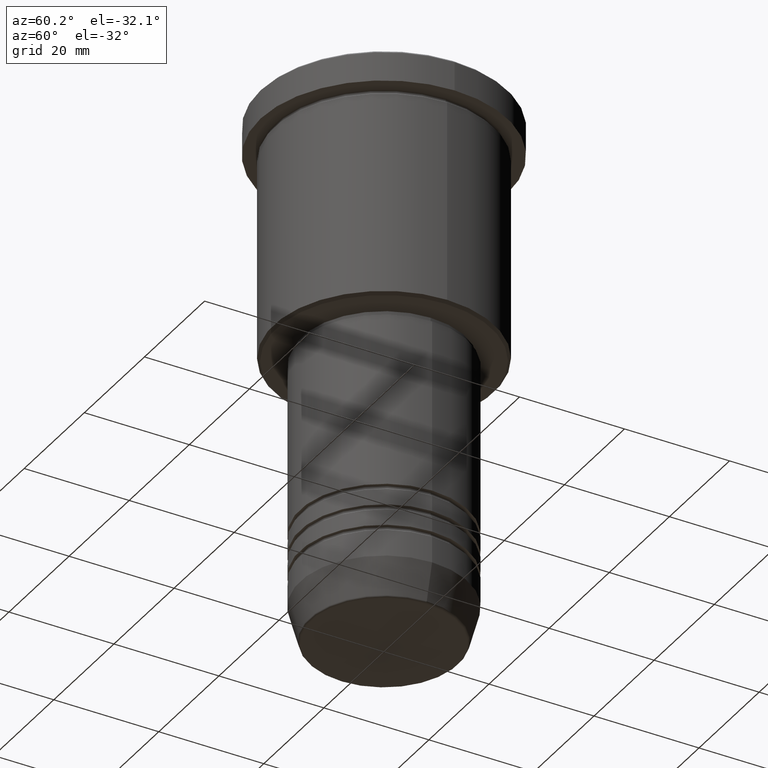
[diagram: clean part render]
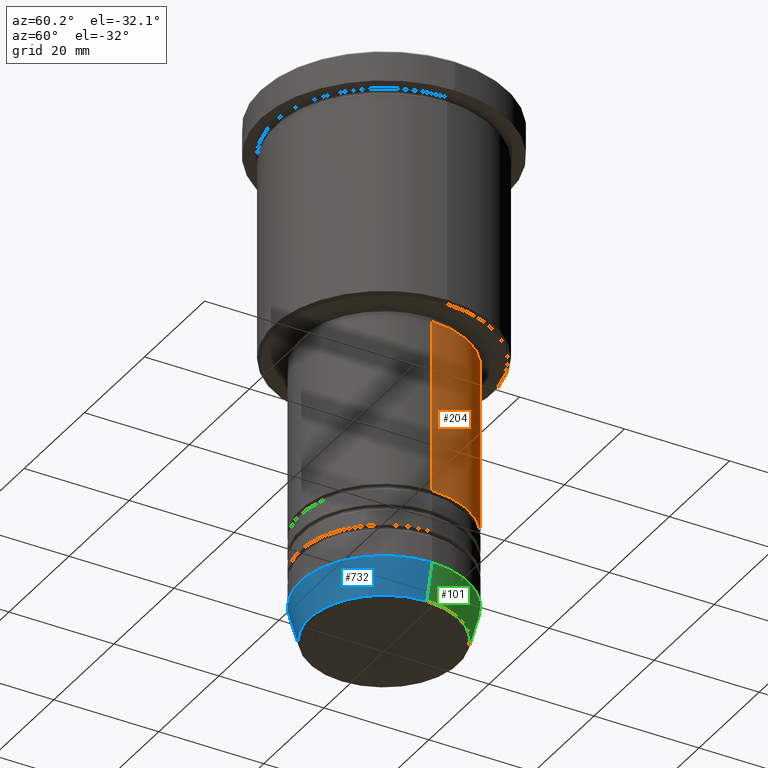
[diagram: same view with three faces highlighted in distinct colors, each labeled with its STEP entity id]
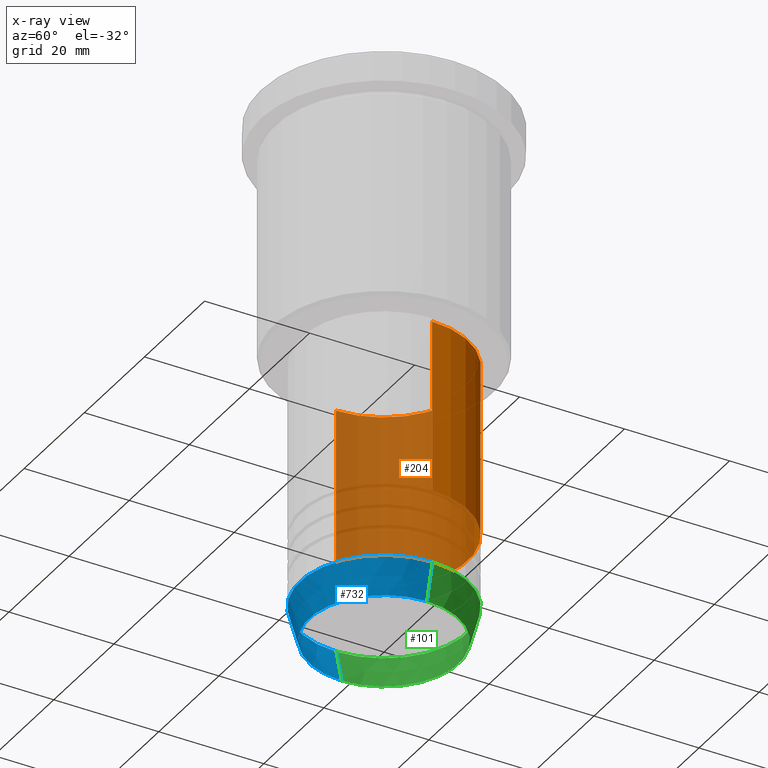
[diagram: x-ray of the same camera — body ghosted, the three highlighted faces saturated]
A machine part, auxiliary view with three faces highlighted in distinct colors.
The next image is the same camera in x-ray (body ghosted, the three faces saturated) — at least one of them is partly hidden behind the body in this view.
Their STEP definitions:

[orange] entity #204 — the highlighted cylindrical surface (partial cylindrical patch) has radius 16 mm, axis along (-0, -0, 1).
#4 = ORIENTED_EDGE ( 'NONE', *, *, #891, .T. ) ;
#31 = VERTEX_POINT ( 'NONE', #487 ) ;
#77 = DIRECTION ( 'NONE',  ( -0.000000000000000000, -0.000000000000000000, 1.000000000000000000 ) ) ;
#131 = LINE ( 'NONE', #497, #1125 ) ;
#204 = ADVANCED_FACE ( 'NONE', ( #440 ), #340, .T. ) ;
#213 = VERTEX_POINT ( 'NONE', #254 ) ;
#254 = CARTESIAN_POINT ( 'NONE',  ( 16.00000000000000355, 0.000000000000000000, -46.99999999999997868 ) ) ;
#294 = VERTEX_POINT ( 'NONE', #831 ) ;
#340 = CYLINDRICAL_SURFACE ( 'NONE', #917, 16.00000000000000000 ) ;
#341 = DIRECTION ( 'NONE',  ( 1.000000000000000000, 0.000000000000000000, 0.000000000000000000 ) ) ;
#404 = ORIENTED_EDGE ( 'NONE', *, *, #876, .T. ) ;
#415 = CIRCLE ( 'NONE', #1082, 16.00000000000000355 ) ;
#440 = FACE_OUTER_BOUND ( 'NONE', #505, .T. ) ;
#450 = DIRECTION ( 'NONE',  ( -0.000000000000000000, -0.000000000000000000, 1.000000000000000000 ) ) ;
#471 = ORIENTED_EDGE ( 'NONE', *, *, #1163, .F. ) ;
#487 = CARTESIAN_POINT ( 'NONE',  ( -16.00000000000000355, 1.959434878635765526E-15, -46.99999999999997868 ) ) ;
#497 = CARTESIAN_POINT ( 'NONE',  ( 16.00000000000000000, 0.000000000000000000, 0.000000000000000000 ) ) ;
#505 = EDGE_LOOP ( 'NONE', ( #4, #404, #982, #471 ) ) ;
#527 = CARTESIAN_POINT ( 'NONE',  ( 0.000000000000000000, 0.000000000000000000, -46.99999999999997868 ) ) ;
#538 = CARTESIAN_POINT ( 'NONE',  ( 16.00000000000000000, 0.000000000000000000, -79.99999999999988631 ) ) ;
#602 = DIRECTION ( 'NONE',  ( -0.000000000000000000, -0.000000000000000000, 1.000000000000000000 ) ) ;
#627 = DIRECTION ( 'NONE',  ( 1.000000000000000000, 0.000000000000000000, 0.000000000000000000 ) ) ;
#641 = DIRECTION ( 'NONE',  ( -0.000000000000000000, -0.000000000000000000, 1.000000000000000000 ) ) ;
#802 = CARTESIAN_POINT ( 'NONE',  ( 0.000000000000000000, 0.000000000000000000, -79.99999999999988631 ) ) ;
#831 = CARTESIAN_POINT ( 'NONE',  ( -16.00000000000000000, 1.959434878635765131E-15, -79.99999999999988631 ) ) ;
#867 = AXIS2_PLACEMENT_3D ( 'NONE', #802, #878, #341 ) ;
#876 = EDGE_CURVE ( 'NONE', #294, #31, #1158, .T. ) ;
#878 = DIRECTION ( 'NONE',  ( -0.000000000000000000, -0.000000000000000000, 1.000000000000000000 ) ) ;
#884 = EDGE_CURVE ( 'NONE', #213, #31, #415, .T. ) ;
#891 = EDGE_CURVE ( 'NONE', #930, #294, #1004, .T. ) ;
#917 = AXIS2_PLACEMENT_3D ( 'NONE', #1079, #602, #998 ) ;
#926 = VECTOR ( 'NONE', #77, 1000.000000000000000 ) ;
#930 = VERTEX_POINT ( 'NONE', #538 ) ;
#982 = ORIENTED_EDGE ( 'NONE', *, *, #884, .F. ) ;
#998 = DIRECTION ( 'NONE',  ( 1.000000000000000000, 0.000000000000000000, 0.000000000000000000 ) ) ;
#999 = CARTESIAN_POINT ( 'NONE',  ( -16.00000000000000000, 1.959434878635765131E-15, 0.000000000000000000 ) ) ;
#1004 = CIRCLE ( 'NONE', #867, 16.00000000000000000 ) ;
#1079 = CARTESIAN_POINT ( 'NONE',  ( 0.000000000000000000, 0.000000000000000000, 0.000000000000000000 ) ) ;
#1082 = AXIS2_PLACEMENT_3D ( 'NONE', #527, #641, #627 ) ;
#1125 = VECTOR ( 'NONE', #450, 1000.000000000000000 ) ;
#1158 = LINE ( 'NONE', #999, #926 ) ;
#1163 = EDGE_CURVE ( 'NONE', #930, #213, #131, .T. ) ;

[blue] entity #732 — the highlighted conical surface has half-angle 15 deg.
#23 = DIRECTION ( 'NONE',  ( 1.000000000000000000, 0.000000000000000000, 0.000000000000000000 ) ) ;
#57 = DIRECTION ( 'NONE',  ( 1.000000000000000000, 0.000000000000000000, 0.000000000000000000 ) ) ;
#139 = AXIS2_PLACEMENT_3D ( 'NONE', #1166, #170, #57 ) ;
#140 = ORIENTED_EDGE ( 'NONE', *, *, #235, .T. ) ;
#168 = VERTEX_POINT ( 'NONE', #697 ) ;
#170 = DIRECTION ( 'NONE',  ( -0.000000000000000000, -0.000000000000000000, 1.000000000000000000 ) ) ;
#173 = AXIS2_PLACEMENT_3D ( 'NONE', #748, #739, #23 ) ;
#190 = DIRECTION ( 'NONE',  ( 1.000000000000000000, 0.000000000000000000, 0.000000000000000000 ) ) ;
#198 = CONICAL_SURFACE ( 'NONE', #173, 16.00000000000000000, 0.2617993877991500740 ) ;
#227 = CIRCLE ( 'NONE', #139, 16.00000000000000000 ) ;
#234 = CARTESIAN_POINT ( 'NONE',  ( -16.00000000000000000, 1.959434878635765131E-15, -94.00000000000000000 ) ) ;
#235 = EDGE_CURVE ( 'NONE', #803, #613, #543, .T. ) ;
#242 = CARTESIAN_POINT ( 'NONE',  ( 14.22365507213718949, 0.000000000000000000, -100.6294095225512706 ) ) ;
#390 = EDGE_LOOP ( 'NONE', ( #539, #1035, #140, #589 ) ) ;
#432 = LINE ( 'NONE', #234, #545 ) ;
#454 = CARTESIAN_POINT ( 'NONE',  ( 0.000000000000000000, 0.000000000000000000, -100.6294095225512706 ) ) ;
#492 = VERTEX_POINT ( 'NONE', #852 ) ;
#506 = CIRCLE ( 'NONE', #927, 14.22365507213718949 ) ;
#518 = DIRECTION ( 'NONE',  ( -0.2588190451025213501, 3.169619151431772337E-17, 0.9659258262890680902 ) ) ;
#539 = ORIENTED_EDGE ( 'NONE', *, *, #954, .F. ) ;
#543 = LINE ( 'NONE', #890, #873 ) ;
#545 = VECTOR ( 'NONE', #518, 1000.000000000000000 ) ;
#589 = ORIENTED_EDGE ( 'NONE', *, *, #595, .F. ) ;
#595 = EDGE_CURVE ( 'NONE', #168, #613, #227, .T. ) ;
#613 = VERTEX_POINT ( 'NONE', #1172 ) ;
#644 = FACE_OUTER_BOUND ( 'NONE', #390, .T. ) ;
#697 = CARTESIAN_POINT ( 'NONE',  ( -16.00000000000000000, 1.959434878635765131E-15, -94.00000000000000000 ) ) ;
#732 = ADVANCED_FACE ( 'NONE', ( #644 ), #198, .T. ) ;
#739 = DIRECTION ( 'NONE',  ( -0.000000000000000000, -0.000000000000000000, 1.000000000000000000 ) ) ;
#748 = CARTESIAN_POINT ( 'NONE',  ( 0.000000000000000000, 0.000000000000000000, -94.00000000000000000 ) ) ;
#781 = DIRECTION ( 'NONE',  ( 0.2588190451025213501, 0.000000000000000000, 0.9659258262890680902 ) ) ;
#803 = VERTEX_POINT ( 'NONE', #242 ) ;
#818 = DIRECTION ( 'NONE',  ( -0.000000000000000000, -0.000000000000000000, 1.000000000000000000 ) ) ;
#852 = CARTESIAN_POINT ( 'NONE',  ( -14.22365507213718949, 1.850665122131323337E-15, -100.6294095225512706 ) ) ;
#873 = VECTOR ( 'NONE', #781, 1000.000000000000000 ) ;
#890 = CARTESIAN_POINT ( 'NONE',  ( 16.00000000000000000, 0.000000000000000000, -94.00000000000000000 ) ) ;
#927 = AXIS2_PLACEMENT_3D ( 'NONE', #454, #818, #190 ) ;
#954 = EDGE_CURVE ( 'NONE', #492, #168, #432, .T. ) ;
#1035 = ORIENTED_EDGE ( 'NONE', *, *, #1136, .T. ) ;
#1136 = EDGE_CURVE ( 'NONE', #492, #803, #506, .T. ) ;
#1166 = CARTESIAN_POINT ( 'NONE',  ( 0.000000000000000000, 0.000000000000000000, -94.00000000000000000 ) ) ;
#1172 = CARTESIAN_POINT ( 'NONE',  ( 16.00000000000000000, 0.000000000000000000, -94.00000000000000000 ) ) ;

[green] entity #101 — the highlighted conical surface has half-angle 15 deg.
#26 = CARTESIAN_POINT ( 'NONE',  ( 0.000000000000000000, 0.000000000000000000, -94.00000000000000000 ) ) ;
#32 = AXIS2_PLACEMENT_3D ( 'NONE', #93, #931, #754 ) ;
#93 = CARTESIAN_POINT ( 'NONE',  ( 0.000000000000000000, 0.000000000000000000, -94.00000000000000000 ) ) ;
#101 = ADVANCED_FACE ( 'NONE', ( #841 ), #371, .T. ) ;
#168 = VERTEX_POINT ( 'NONE', #697 ) ;
#199 = ORIENTED_EDGE ( 'NONE', *, *, #591, .T. ) ;
#234 = CARTESIAN_POINT ( 'NONE',  ( -16.00000000000000000, 1.959434878635765131E-15, -94.00000000000000000 ) ) ;
#235 = EDGE_CURVE ( 'NONE', #803, #613, #543, .T. ) ;
#242 = CARTESIAN_POINT ( 'NONE',  ( 14.22365507213718949, 0.000000000000000000, -100.6294095225512706 ) ) ;
#291 = DIRECTION ( 'NONE',  ( -0.000000000000000000, -0.000000000000000000, 1.000000000000000000 ) ) ;
#304 = AXIS2_PLACEMENT_3D ( 'NONE', #26, #291, #639 ) ;
#371 = CONICAL_SURFACE ( 'NONE', #304, 16.00000000000000000, 0.2617993877991500740 ) ;
#399 = ORIENTED_EDGE ( 'NONE', *, *, #954, .T. ) ;
#432 = LINE ( 'NONE', #234, #545 ) ;
#492 = VERTEX_POINT ( 'NONE', #852 ) ;
#518 = DIRECTION ( 'NONE',  ( -0.2588190451025213501, 3.169619151431772337E-17, 0.9659258262890680902 ) ) ;
#541 = CARTESIAN_POINT ( 'NONE',  ( 0.000000000000000000, 0.000000000000000000, -100.6294095225512706 ) ) ;
#543 = LINE ( 'NONE', #890, #873 ) ;
#545 = VECTOR ( 'NONE', #518, 1000.000000000000000 ) ;
#591 = EDGE_CURVE ( 'NONE', #803, #492, #1044, .T. ) ;
#613 = VERTEX_POINT ( 'NONE', #1172 ) ;
#639 = DIRECTION ( 'NONE',  ( 1.000000000000000000, 0.000000000000000000, 0.000000000000000000 ) ) ;
#677 = ORIENTED_EDGE ( 'NONE', *, *, #712, .F. ) ;
#697 = CARTESIAN_POINT ( 'NONE',  ( -16.00000000000000000, 1.959434878635765131E-15, -94.00000000000000000 ) ) ;
#712 = EDGE_CURVE ( 'NONE', #613, #168, #960, .T. ) ;
#754 = DIRECTION ( 'NONE',  ( 1.000000000000000000, 0.000000000000000000, 0.000000000000000000 ) ) ;
#760 = AXIS2_PLACEMENT_3D ( 'NONE', #541, #895, #1084 ) ;
#781 = DIRECTION ( 'NONE',  ( 0.2588190451025213501, 0.000000000000000000, 0.9659258262890680902 ) ) ;
#803 = VERTEX_POINT ( 'NONE', #242 ) ;
#841 = FACE_OUTER_BOUND ( 'NONE', #1138, .T. ) ;
#852 = CARTESIAN_POINT ( 'NONE',  ( -14.22365507213718949, 1.850665122131323337E-15, -100.6294095225512706 ) ) ;
#873 = VECTOR ( 'NONE', #781, 1000.000000000000000 ) ;
#890 = CARTESIAN_POINT ( 'NONE',  ( 16.00000000000000000, 0.000000000000000000, -94.00000000000000000 ) ) ;
#895 = DIRECTION ( 'NONE',  ( -0.000000000000000000, -0.000000000000000000, 1.000000000000000000 ) ) ;
#931 = DIRECTION ( 'NONE',  ( -0.000000000000000000, -0.000000000000000000, 1.000000000000000000 ) ) ;
#954 = EDGE_CURVE ( 'NONE', #492, #168, #432, .T. ) ;
#960 = CIRCLE ( 'NONE', #32, 16.00000000000000000 ) ;
#1041 = ORIENTED_EDGE ( 'NONE', *, *, #235, .F. ) ;
#1044 = CIRCLE ( 'NONE', #760, 14.22365507213718949 ) ;
#1084 = DIRECTION ( 'NONE',  ( 1.000000000000000000, 0.000000000000000000, 0.000000000000000000 ) ) ;
#1138 = EDGE_LOOP ( 'NONE', ( #199, #399, #677, #1041 ) ) ;
#1172 = CARTESIAN_POINT ( 'NONE',  ( 16.00000000000000000, 0.000000000000000000, -94.00000000000000000 ) ) ;